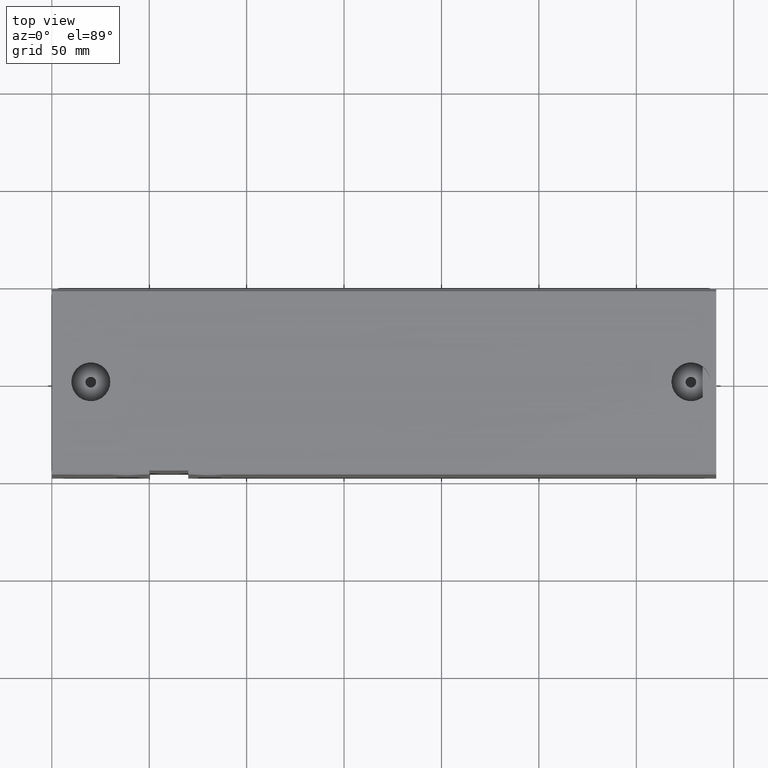
[diagram: clean part render]
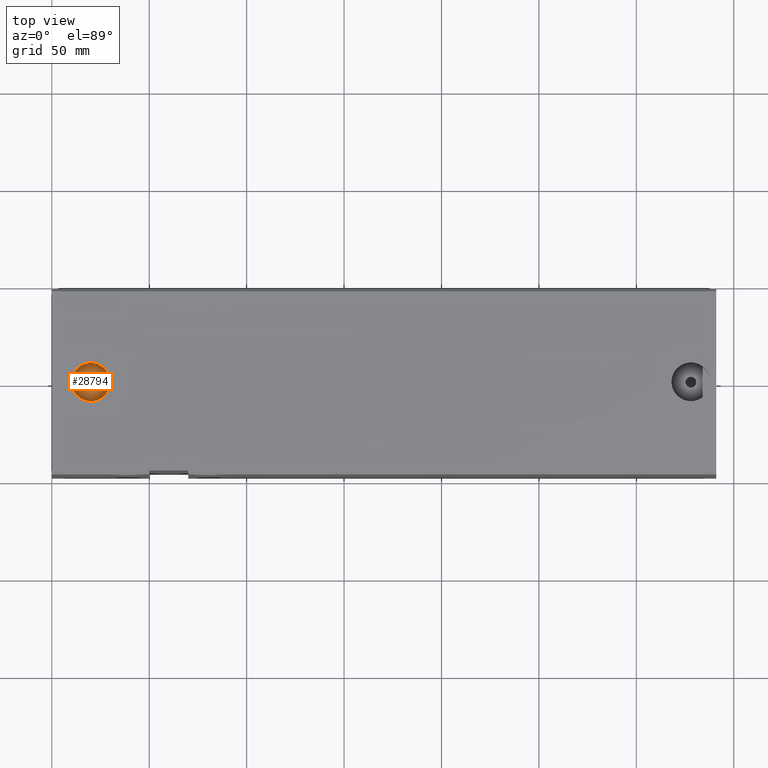
[diagram: same view with one face highlighted and labeled with its STEP entity id]
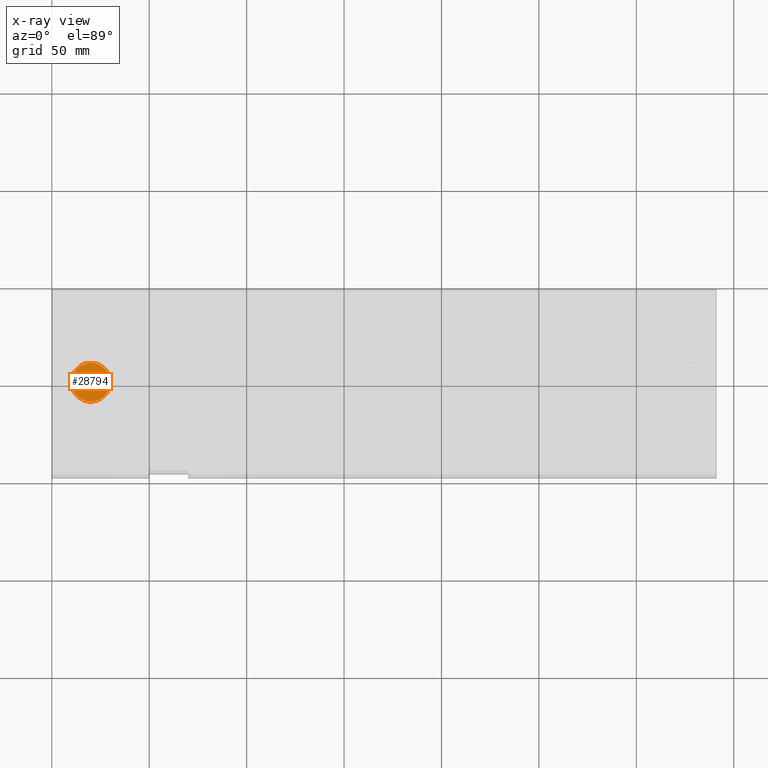
[diagram: x-ray of the same camera — body ghosted, the highlighted face saturated]
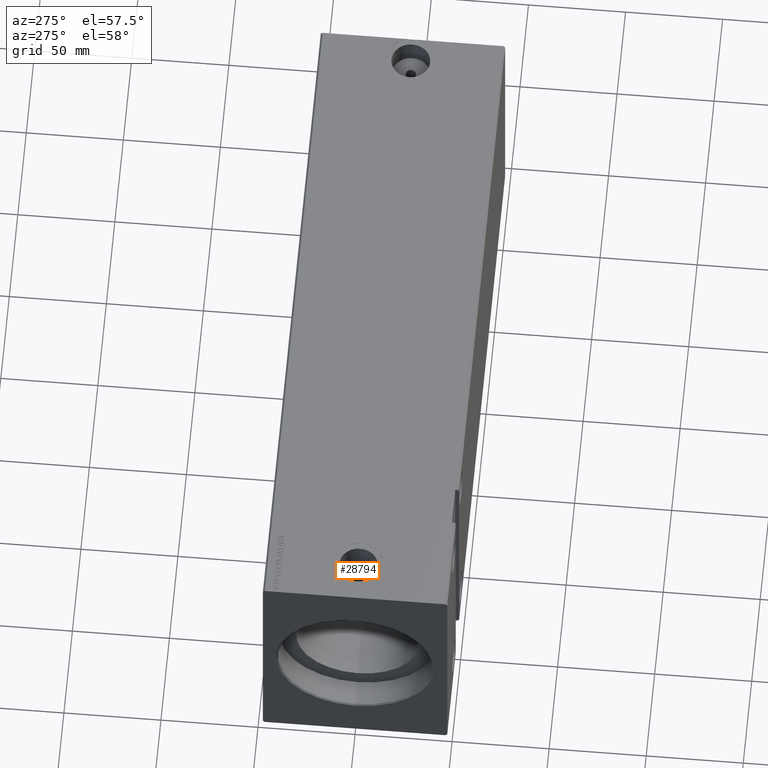
[diagram: same view with one face highlighted and labeled with its STEP entity id]
A machine part, top view. The second image highlights one B-rep face of the part: STEP entity #28794.
The next image is the same camera in x-ray: the body ghosted, the highlighted face saturated — about 0% of this face is hidden behind the body in this view.
A second angle (auxiliary view) of the same face is appended — the face is thin or edge-on in the first view.
In plain terms, the highlighted planar face has unit normal (0, 0, 1).
Its self-contained STEP definition (entity closure, byte-faithful):
#263 = EDGE_LOOP ( 'NONE', ( #40410, #7438 ) ) ;
#743 = CARTESIAN_POINT ( 'NONE',  ( 19.99999999999999645, 2.602085213965210642E-15, 49.39999999999998437 ) ) ;
#1477 = ORIENTED_EDGE ( 'NONE', *, *, #36983, .F. ) ;
#2065 = PLANE ( 'NONE',  #20828 ) ;
#2628 = CARTESIAN_POINT ( 'NONE',  ( 9.999999999999996447, 3.826732013112563701E-15, 49.39999999999998437 ) ) ;
#2644 = CARTESIAN_POINT ( 'NONE',  ( 30.00000000000000000, 2.602085213965210642E-15, 49.39999999999998437 ) ) ;
#2892 = ORIENTED_EDGE ( 'NONE', *, *, #14976, .F. ) ;
#5862 = AXIS2_PLACEMENT_3D ( 'NONE', #10698, #8370, #14304 ) ;
#6164 = CARTESIAN_POINT ( 'NONE',  ( 22.74999999999999645, 2.602085213965210642E-15, 49.39999999999998437 ) ) ;
#7437 = VERTEX_POINT ( 'NONE', #6164 ) ;
#7438 = ORIENTED_EDGE ( 'NONE', *, *, #18337, .T. ) ;
#8239 = CARTESIAN_POINT ( 'NONE',  ( 19.99999999999999645, 2.602085213965210642E-15, 49.39999999999998437 ) ) ;
#8370 = DIRECTION ( 'NONE',  ( 0.000000000000000000, 0.000000000000000000, 1.000000000000000000 ) ) ;
#8559 = EDGE_CURVE ( 'NONE', #21043, #25297, #30417, .T. ) ;
#10698 = CARTESIAN_POINT ( 'NONE',  ( 19.99999999999999645, 2.602085213965210642E-15, 49.39999999999998437 ) ) ;
#12881 = CARTESIAN_POINT ( 'NONE',  ( 17.24999999999999645, 2.938863083730732299E-15, 49.39999999999998437 ) ) ;
#14304 = DIRECTION ( 'NONE',  ( 1.000000000000000000, 0.000000000000000000, 0.000000000000000000 ) ) ;
#14976 = EDGE_CURVE ( 'NONE', #7437, #36177, #24189, .T. ) ;
#15250 = CIRCLE ( 'NONE', #19332, 10.00000000000000178 ) ;
#15778 = DIRECTION ( 'NONE',  ( 0.000000000000000000, 0.000000000000000000, 1.000000000000000000 ) ) ;
#17251 = DIRECTION ( 'NONE',  ( 1.000000000000000000, 0.000000000000000000, 0.000000000000000000 ) ) ;
#18337 = EDGE_CURVE ( 'NONE', #25297, #21043, #15250, .T. ) ;
#18965 = CIRCLE ( 'NONE', #31849, 2.749999999999999112 ) ;
#19332 = AXIS2_PLACEMENT_3D ( 'NONE', #24272, #40201, #17251 ) ;
#19933 = FACE_BOUND ( 'NONE', #35290, .T. ) ;
#20828 = AXIS2_PLACEMENT_3D ( 'NONE', #8239, #24585, #21193 ) ;
#21043 = VERTEX_POINT ( 'NONE', #2644 ) ;
#21193 = DIRECTION ( 'NONE',  ( 1.000000000000000000, 0.000000000000000000, -0.000000000000000000 ) ) ;
#22629 = DIRECTION ( 'NONE',  ( 0.000000000000000000, 0.000000000000000000, 1.000000000000000000 ) ) ;
#24189 = CIRCLE ( 'NONE', #5862, 2.749999999999999112 ) ;
#24272 = CARTESIAN_POINT ( 'NONE',  ( 19.99999999999999645, 2.602085213965210642E-15, 49.39999999999998437 ) ) ;
#24585 = DIRECTION ( 'NONE',  ( 0.000000000000000000, 0.000000000000000000, 1.000000000000000000 ) ) ;
#25297 = VERTEX_POINT ( 'NONE', #2628 ) ;
#26416 = DIRECTION ( 'NONE',  ( 1.000000000000000000, 0.000000000000000000, 0.000000000000000000 ) ) ;
#26653 = DIRECTION ( 'NONE',  ( 1.000000000000000000, 0.000000000000000000, 0.000000000000000000 ) ) ;
#28794 = ADVANCED_FACE ( 'NONE', ( #19933, #33720 ), #2065, .T. ) ;
#30417 = CIRCLE ( 'NONE', #32545, 10.00000000000000178 ) ;
#31849 = AXIS2_PLACEMENT_3D ( 'NONE', #41497, #15778, #26416 ) ;
#32545 = AXIS2_PLACEMENT_3D ( 'NONE', #743, #22629, #26653 ) ;
#33720 = FACE_OUTER_BOUND ( 'NONE', #263, .T. ) ;
#35290 = EDGE_LOOP ( 'NONE', ( #2892, #1477 ) ) ;
#36177 = VERTEX_POINT ( 'NONE', #12881 ) ;
#36983 = EDGE_CURVE ( 'NONE', #36177, #7437, #18965, .T. ) ;
#40201 = DIRECTION ( 'NONE',  ( 0.000000000000000000, 0.000000000000000000, 1.000000000000000000 ) ) ;
#40410 = ORIENTED_EDGE ( 'NONE', *, *, #8559, .T. ) ;
#41497 = CARTESIAN_POINT ( 'NONE',  ( 19.99999999999999645, 2.602085213965210642E-15, 49.39999999999998437 ) ) ;